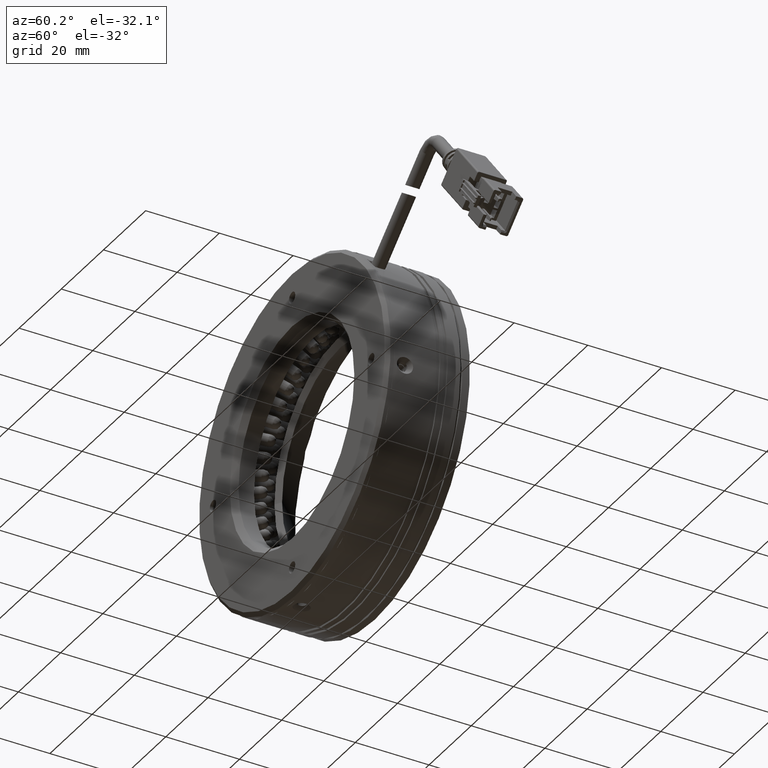
[diagram: clean part render]
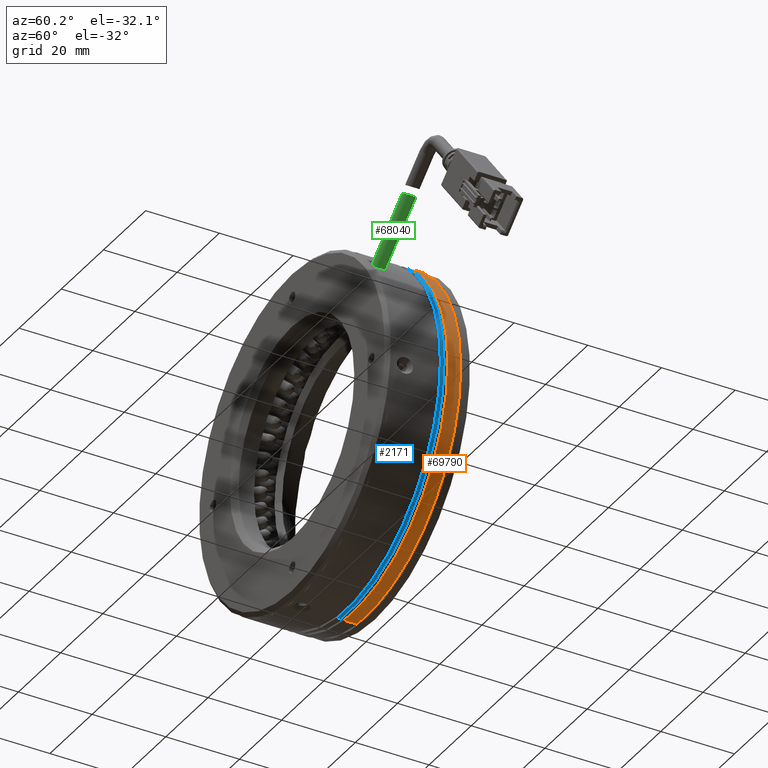
[diagram: same view with three faces highlighted in distinct colors, each labeled with its STEP entity id]
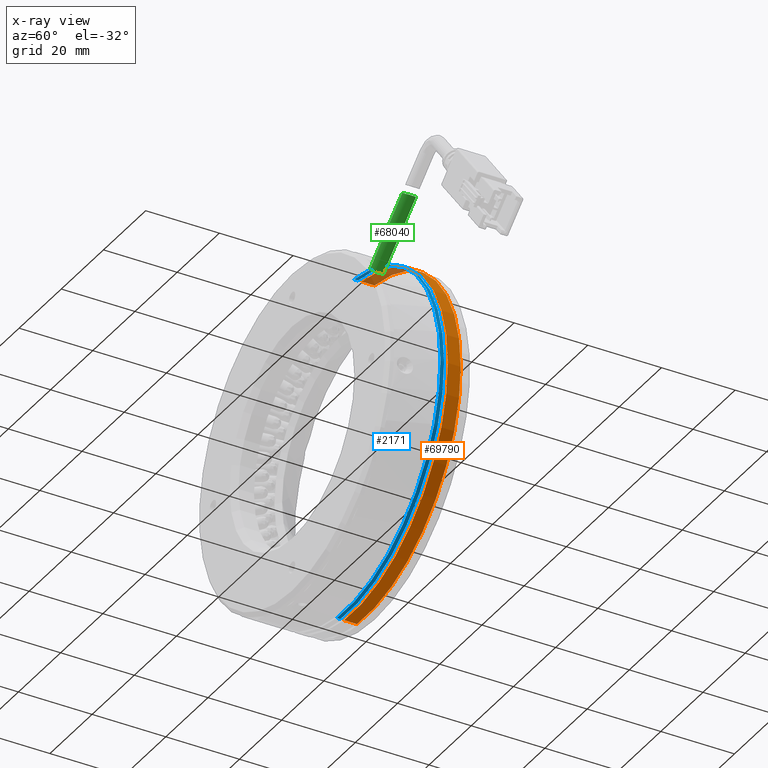
[diagram: x-ray of the same camera — body ghosted, the three highlighted faces saturated]
A machine part, auxiliary view with three faces highlighted in distinct colors.
The next image is the same camera in x-ray (body ghosted, the three faces saturated) — at least one of them is partly hidden behind the body in this view.
Their STEP definitions:

[orange] entity #69790 — the highlighted cylindrical surface (partial cylindrical patch) has radius 45 mm, axis along (0, -1, 0).
#999 = EDGE_CURVE ( 'NONE', #112588, #36920, #121568, .T. ) ;
#5186 = CARTESIAN_POINT ( 'NONE',  ( -53.99004085520083900, 10.11989054203920400, -3.797922368083184200 ) ) ;
#7885 = CARTESIAN_POINT ( 'NONE',  ( -53.99004085520083900, 32.97876601230220900, -3.797922368083184200 ) ) ;
#9716 = CARTESIAN_POINT ( 'NONE',  ( -58.15324870099051700, 10.11989054203920400, -48.60492740560779600 ) ) ;
#15283 = CARTESIAN_POINT ( 'NONE',  ( -49.82683300941115300, 36.47876601230220900, 41.00908266944143300 ) ) ;
#18383 = DIRECTION ( 'NONE',  ( -0.09251572990643723600, 0.0000000000000000000, -0.9957112230561022700 ) ) ;
#18541 = VECTOR ( 'NONE', #92940, 1000.000000000000000 ) ;
#21505 = AXIS2_PLACEMENT_3D ( 'NONE', #5186, #99367, #68487 ) ;
#22223 = CYLINDRICAL_SURFACE ( 'NONE', #21505, 45.00000000000000700 ) ;
#23298 = EDGE_CURVE ( 'NONE', #89047, #28555, #125926, .T. ) ;
#25870 = ORIENTED_EDGE ( 'NONE', *, *, #999, .T. ) ;
#28555 = VERTEX_POINT ( 'NONE', #106234 ) ;
#28810 = EDGE_CURVE ( 'NONE', #36920, #28555, #106986, .T. ) ;
#36343 = DIRECTION ( 'NONE',  ( -0.0000000000000000000, 1.000000000000000000, -0.0000000000000000000 ) ) ;
#36920 = VERTEX_POINT ( 'NONE', #99731 ) ;
#44077 = ORIENTED_EDGE ( 'NONE', *, *, #28810, .T. ) ;
#51001 = AXIS2_PLACEMENT_3D ( 'NONE', #98624, #36343, #109061 ) ;
#57070 = DIRECTION ( 'NONE',  ( 0.0000000000000000000, -1.000000000000000000, 0.0000000000000000000 ) ) ;
#57080 = ORIENTED_EDGE ( 'NONE', *, *, #23298, .F. ) ;
#66294 = VECTOR ( 'NONE', #57070, 1000.000000000000000 ) ;
#67110 = CARTESIAN_POINT ( 'NONE',  ( -49.82683300941115300, 10.11989054203920400, 41.00908266944142600 ) ) ;
#68487 = DIRECTION ( 'NONE',  ( -0.09251572990643723600, 0.0000000000000000000, -0.9957112230561022700 ) ) ;
#69790 = ADVANCED_FACE ( 'NONE', ( #114931 ), #22223, .T. ) ;
#73615 = EDGE_CURVE ( 'NONE', #112588, #89047, #113675, .T. ) ;
#79082 = ORIENTED_EDGE ( 'NONE', *, *, #73615, .F. ) ;
#80722 = DIRECTION ( 'NONE',  ( -0.0000000000000000000, 1.000000000000000000, -0.0000000000000000000 ) ) ;
#89047 = VERTEX_POINT ( 'NONE', #91032 ) ;
#91032 = CARTESIAN_POINT ( 'NONE',  ( -58.15324870099051700, 36.47876601230221600, -48.60492740560780300 ) ) ;
#92940 = DIRECTION ( 'NONE',  ( 0.0000000000000000000, -1.000000000000000000, 0.0000000000000000000 ) ) ;
#94172 = AXIS2_PLACEMENT_3D ( 'NONE', #7885, #80722, #18383 ) ;
#98624 = CARTESIAN_POINT ( 'NONE',  ( -53.99004085520083900, 36.47876601230220900, -3.797922368083184200 ) ) ;
#99367 = DIRECTION ( 'NONE',  ( 0.0000000000000000000, -1.000000000000000000, 0.0000000000000000000 ) ) ;
#99731 = CARTESIAN_POINT ( 'NONE',  ( -49.82683300941115300, 32.97876601230220900, 41.00908266944142600 ) ) ;
#106234 = CARTESIAN_POINT ( 'NONE',  ( -58.15324870099051700, 32.97876601230220900, -48.60492740560779600 ) ) ;
#106986 = CIRCLE ( 'NONE', #94172, 45.00000000000000700 ) ;
#109061 = DIRECTION ( 'NONE',  ( -0.09251572990643722200, 1.541976423090494600E-016, -0.9957112230561022700 ) ) ;
#112588 = VERTEX_POINT ( 'NONE', #15283 ) ;
#113675 = CIRCLE ( 'NONE', #51001, 45.00000000000001400 ) ;
#114931 = FACE_OUTER_BOUND ( 'NONE', #134528, .T. ) ;
#121568 = LINE ( 'NONE', #67110, #66294 ) ;
#125926 = LINE ( 'NONE', #9716, #18541 ) ;
#134528 = EDGE_LOOP ( 'NONE', ( #79082, #25870, #44077, #57080 ) ) ;

[blue] entity #2171 — the highlighted cylindrical surface (partial cylindrical patch) has radius 45 mm, axis along (0, -1, 0).
#88 = EDGE_CURVE ( 'NONE', #7626, #124250, #81540, .T. ) ;
#1613 = CARTESIAN_POINT ( 'NONE',  ( -58.15324870099051700, 10.11989054203920400, -48.60492740560779600 ) ) ;
#1847 = EDGE_CURVE ( 'NONE', #7626, #76328, #49776, .T. ) ;
#2171 = ADVANCED_FACE ( 'NONE', ( #37964 ), #129083, .T. ) ;
#7019 = ORIENTED_EDGE ( 'NONE', *, *, #54590, .T. ) ;
#7626 = VERTEX_POINT ( 'NONE', #131403 ) ;
#19154 = AXIS2_PLACEMENT_3D ( 'NONE', #84718, #118252, #81118 ) ;
#24168 = ORIENTED_EDGE ( 'NONE', *, *, #124646, .T. ) ;
#34566 = ORIENTED_EDGE ( 'NONE', *, *, #88, .F. ) ;
#35502 = CARTESIAN_POINT ( 'NONE',  ( -58.15324870099051700, 30.97876601230220900, -48.60492740560779600 ) ) ;
#37964 = FACE_OUTER_BOUND ( 'NONE', #132467, .T. ) ;
#38707 = CARTESIAN_POINT ( 'NONE',  ( -49.82683300941115300, 10.11989054203920400, 41.00908266944142600 ) ) ;
#38756 = DIRECTION ( 'NONE',  ( -0.0000000000000000000, 1.000000000000000000, -0.0000000000000000000 ) ) ;
#45950 = CIRCLE ( 'NONE', #89894, 45.00000000000000700 ) ;
#49536 = VECTOR ( 'NONE', #112762, 1000.000000000000000 ) ;
#49776 = CIRCLE ( 'NONE', #89708, 45.00000000000000700 ) ;
#53880 = VECTOR ( 'NONE', #81721, 1000.000000000000000 ) ;
#54590 = EDGE_CURVE ( 'NONE', #123328, #124250, #45950, .T. ) ;
#71020 = ORIENTED_EDGE ( 'NONE', *, *, #1847, .T. ) ;
#76328 = VERTEX_POINT ( 'NONE', #101917 ) ;
#77182 = LINE ( 'NONE', #38707, #49536 ) ;
#81118 = DIRECTION ( 'NONE',  ( -0.09251572990643723600, 0.0000000000000000000, -0.9957112230561022700 ) ) ;
#81540 = LINE ( 'NONE', #1613, #53880 ) ;
#81721 = DIRECTION ( 'NONE',  ( 0.0000000000000000000, -1.000000000000000000, 0.0000000000000000000 ) ) ;
#84718 = CARTESIAN_POINT ( 'NONE',  ( -53.99004085520083900, 10.11989054203920400, -3.797922368083184200 ) ) ;
#89708 = AXIS2_PLACEMENT_3D ( 'NONE', #121407, #120944, #120490 ) ;
#89894 = AXIS2_PLACEMENT_3D ( 'NONE', #101050, #38756, #111512 ) ;
#101050 = CARTESIAN_POINT ( 'NONE',  ( -53.99004085520083900, 30.97876601230220900, -3.797922368083184200 ) ) ;
#101917 = CARTESIAN_POINT ( 'NONE',  ( -49.82683300941115300, 31.97876601230220600, 41.00908266944142600 ) ) ;
#111512 = DIRECTION ( 'NONE',  ( -0.09251572990643723600, 0.0000000000000000000, -0.9957112230561022700 ) ) ;
#112762 = DIRECTION ( 'NONE',  ( 0.0000000000000000000, -1.000000000000000000, 0.0000000000000000000 ) ) ;
#118252 = DIRECTION ( 'NONE',  ( 0.0000000000000000000, -1.000000000000000000, 0.0000000000000000000 ) ) ;
#119440 = CARTESIAN_POINT ( 'NONE',  ( -49.82683300941115300, 30.97876601230220900, 41.00908266944142600 ) ) ;
#120490 = DIRECTION ( 'NONE',  ( -0.09251572990643723600, 0.0000000000000000000, -0.9957112230561022700 ) ) ;
#120944 = DIRECTION ( 'NONE',  ( 0.0000000000000000000, -1.000000000000000000, 0.0000000000000000000 ) ) ;
#121407 = CARTESIAN_POINT ( 'NONE',  ( -53.99004085520083900, 31.97876601230220600, -3.797922368083184200 ) ) ;
#123328 = VERTEX_POINT ( 'NONE', #119440 ) ;
#124250 = VERTEX_POINT ( 'NONE', #35502 ) ;
#124646 = EDGE_CURVE ( 'NONE', #76328, #123328, #77182, .T. ) ;
#129083 = CYLINDRICAL_SURFACE ( 'NONE', #19154, 45.00000000000000700 ) ;
#131403 = CARTESIAN_POINT ( 'NONE',  ( -58.15324870099051700, 31.97876601230220600, -48.60492740560779600 ) ) ;
#132467 = EDGE_LOOP ( 'NONE', ( #71020, #24168, #7019, #34566 ) ) ;

[green] entity #68040 — the highlighted cylindrical surface (edge-blend (fillet) strip) has radius 1.75 mm, axis along (-0.7695, 0, -0.6387).
#4267 = CARTESIAN_POINT ( 'NONE',  ( -4.978881905723243400, 21.92876601230221200, 36.73107966413925900 ) ) ;
#4722 = CARTESIAN_POINT ( 'NONE',  ( -3.748795341506118400, 20.96514682839001900, 35.86361606312516400 ) ) ;
#5157 = CARTESIAN_POINT ( 'NONE',  ( -4.349699543093328700, 18.65647721438623900, 36.27065946883248400 ) ) ;
#10384 = VERTEX_POINT ( 'NONE', #89383 ) ;
#15194 = CARTESIAN_POINT ( 'NONE',  ( -20.34445278027740000, 21.92876601230220900, 24.12689922442807600 ) ) ;
#15222 = CARTESIAN_POINT ( 'NONE',  ( -3.587266028599591600, 20.41296009504479900, 35.76102171003827800 ) ) ;
#15656 = CARTESIAN_POINT ( 'NONE',  ( -4.699110464156405900, 18.47354675045022500, 36.52197656711388900 ) ) ;
#24709 = EDGE_CURVE ( 'NONE', #72723, #58568, #108425, .T. ) ;
#25271 = CARTESIAN_POINT ( 'NONE',  ( -4.703366618724818900, 21.87413759804280000, 36.52600651489902400 ) ) ;
#25707 = CARTESIAN_POINT ( 'NONE',  ( -3.597224943168610500, 19.94747277912702500, 35.76723617684894000 ) ) ;
#26155 = CARTESIAN_POINT ( 'NONE',  ( -5.072649851535512500, 18.42876601230220900, 36.80203425941226700 ) ) ;
#26708 = ORIENTED_EDGE ( 'NONE', *, *, #120306, .T. ) ;
#29437 = VECTOR ( 'NONE', #68409, 1000.000000000000000 ) ;
#30290 = EDGE_LOOP ( 'NONE', ( #125863, #116008, #26708, #69346 ) ) ;
#33582 = CARTESIAN_POINT ( 'NONE',  ( -5.072649851535512500, 18.42876601230220900, 36.80203425941226700 ) ) ;
#35730 = CARTESIAN_POINT ( 'NONE',  ( -4.435957362704270300, 21.75518255144723100, 36.33198063170444700 ) ) ;
#36180 = CARTESIAN_POINT ( 'NONE',  ( -3.668424098502146800, 19.60855097003989700, 35.81213176868350700 ) ) ;
#36994 = CARTESIAN_POINT ( 'NONE',  ( 3.509819614925893100, 21.92876601230220900, 43.92522462066904200 ) ) ;
#37757 = CARTESIAN_POINT ( 'NONE',  ( 3.509819614925892200, 20.17876601230220900, 43.92522462066904200 ) ) ;
#37938 = CARTESIAN_POINT ( 'NONE',  ( -5.072649851535517800, 21.92876601230220900, 36.80203425941228100 ) ) ;
#46182 = CARTESIAN_POINT ( 'NONE',  ( -4.191206009957950200, 21.57790813909917900, 36.15968656745872800 ) ) ;
#46625 = CARTESIAN_POINT ( 'NONE',  ( -3.796731636442682400, 19.29218903274651000, 35.89459615010071000 ) ) ;
#49294 = CYLINDRICAL_SURFACE ( 'NONE', #113336, 1.750000000000001600 ) ;
#56640 = CARTESIAN_POINT ( 'NONE',  ( -3.974291251374442600, 21.34523276077559100, 36.01184734418816200 ) ) ;
#57081 = CARTESIAN_POINT ( 'NONE',  ( -3.972544386448228200, 19.01445775984862500, 36.01067129488199500 ) ) ;
#58568 = VERTEX_POINT ( 'NONE', #33582 ) ;
#59401 = EDGE_CURVE ( 'NONE', #72723, #98083, #71788, .T. ) ;
#59873 = DIRECTION ( 'NONE',  ( 0.7694926579097844900, -4.930380657631323800E-032, 0.6386556579432576300 ) ) ;
#61888 = AXIS2_PLACEMENT_3D ( 'NONE', #122122, #59873, #132649 ) ;
#64216 = CIRCLE ( 'NONE', #61888, 1.750000000000001600 ) ;
#67116 = CARTESIAN_POINT ( 'NONE',  ( -3.798089852773808100, 21.06801811305299700, 35.89547835347288200 ) ) ;
#67558 = CARTESIAN_POINT ( 'NONE',  ( -4.189270871556466600, 18.78133905221131500, 36.15834657698677300 ) ) ;
#68040 = ADVANCED_FACE ( 'NONE', ( #86766 ), #49294, .T. ) ;
#68409 = DIRECTION ( 'NONE',  ( -0.7694926579097844900, 4.930380657631323800E-032, -0.6386556579432576300 ) ) ;
#69346 = ORIENTED_EDGE ( 'NONE', *, *, #59401, .F. ) ;
#70416 = VECTOR ( 'NONE', #118362, 1000.000000000000000 ) ;
#71788 = LINE ( 'NONE', #36994, #29437 ) ;
#72723 = VERTEX_POINT ( 'NONE', #37938 ) ;
#77559 = CARTESIAN_POINT ( 'NONE',  ( -3.630190103944040300, 20.64707235208580400, 35.78763093377129000 ) ) ;
#78018 = CARTESIAN_POINT ( 'NONE',  ( -4.435509500093267800, 18.60262699310892400, 36.33166188711564400 ) ) ;
#86766 = FACE_OUTER_BOUND ( 'NONE', #30290, .T. ) ;
#87599 = CARTESIAN_POINT ( 'NONE',  ( -5.072649851535517800, 21.92876601230220900, 36.80203425941228100 ) ) ;
#88030 = CARTESIAN_POINT ( 'NONE',  ( -3.586866686898702000, 20.06504446021459400, 35.76077174860924400 ) ) ;
#88484 = CARTESIAN_POINT ( 'NONE',  ( -4.885092664576896800, 18.42876601229959000, 36.66010895459808000 ) ) ;
#89383 = CARTESIAN_POINT ( 'NONE',  ( -20.34445278027740000, 18.42876601230220900, 24.12689922442807600 ) ) ;
#98016 = CARTESIAN_POINT ( 'NONE',  ( -4.612117610550424000, 21.84132792424547600, 36.45917408623130000 ) ) ;
#98083 = VERTEX_POINT ( 'NONE', #15194 ) ;
#98456 = CARTESIAN_POINT ( 'NONE',  ( -3.638196812197141300, 19.71899075552290600, 35.79303551535870300 ) ) ;
#107924 = CARTESIAN_POINT ( 'NONE',  ( 3.509819614925891800, 18.42876601230220900, 43.92522462066904200 ) ) ;
#108425 = B_SPLINE_CURVE_WITH_KNOTS ( 'NONE', 3,
 ( #87599, #4267, #118446, #25271, #98016, #35730, #108444, #46182, #118907, #56640, #129415, #67116, #4722, #77559, #15222, #88030, #25707, #98456, #36180, #108884, #46625, #119337, #57081, #129856, #67558, #5157, #78018, #15656, #88484, #26155 ),
 .UNSPECIFIED., .F., .F.,
 ( 4, 2, 2, 2, 2, 2, 2, 2, 2, 2, 2, 2, 2, 2, 4 ),
 ( 0.0000000000000000000, 0.0003477554158597286500, 0.0006955108317194572900, 0.001043266247579185800, 0.001391021663438914600, 0.001738777079298643100, 0.002086532495158371700, 0.002782043326877833500, 0.003129798742737559000, 0.003477554158597284100, 0.003825309574457010400, 0.004173064990316736400, 0.004520820406176462300, 0.004868575822036188200, 0.005564086653755655700 ),
 .UNSPECIFIED. ) ;
#108444 = CARTESIAN_POINT ( 'NONE',  ( -4.351773804521657000, 21.70245487598048600, 36.27212675199544400 ) ) ;
#108884 = CARTESIAN_POINT ( 'NONE',  ( -3.747567058333026500, 19.39507198079826700, 35.86282333950807600 ) ) ;
#110984 = DIRECTION ( 'NONE',  ( -0.7694926579097844900, 4.930380657631323800E-032, -0.6386556579432576300 ) ) ;
#111411 = DIRECTION ( 'NONE',  ( 4.956352788505158300E-016, 1.000000000000000000, 0.0000000000000000000 ) ) ;
#113336 = AXIS2_PLACEMENT_3D ( 'NONE', #37757, #110984, #111411 ) ;
#116008 = ORIENTED_EDGE ( 'NONE', *, *, #122268, .T. ) ;
#118362 = DIRECTION ( 'NONE',  ( -0.7694926579097844900, 4.930380657631323800E-032, -0.6386556579432576300 ) ) ;
#118446 = CARTESIAN_POINT ( 'NONE',  ( -4.886331765776074800, 21.91763801946298400, 36.66166000490932900 ) ) ;
#118907 = CARTESIAN_POINT ( 'NONE',  ( -4.114145145113115000, 21.50515450560055400, 36.10665374290075400 ) ) ;
#119337 = CARTESIAN_POINT ( 'NONE',  ( -3.908947413166514300, 19.10259192737063200, 35.96834442166122200 ) ) ;
#120306 = EDGE_CURVE ( 'NONE', #10384, #98083, #64216, .T. ) ;
#122122 = CARTESIAN_POINT ( 'NONE',  ( -20.34445278027740800, 20.17876601230220900, 24.12689922442807600 ) ) ;
#122268 = EDGE_CURVE ( 'NONE', #58568, #10384, #122397, .T. ) ;
#122397 = LINE ( 'NONE', #107924, #70416 ) ;
#125863 = ORIENTED_EDGE ( 'NONE', *, *, #24709, .T. ) ;
#129415 = CARTESIAN_POINT ( 'NONE',  ( -3.910928206601219000, 21.25789504830304500, 35.96965693030226400 ) ) ;
#129856 = CARTESIAN_POINT ( 'NONE',  ( -4.113687556492100900, 18.85274229042736100, 36.10633552810263300 ) ) ;
#132649 = DIRECTION ( 'NONE',  ( 0.0000000000000000000, 1.000000000000000000, 0.0000000000000000000 ) ) ;